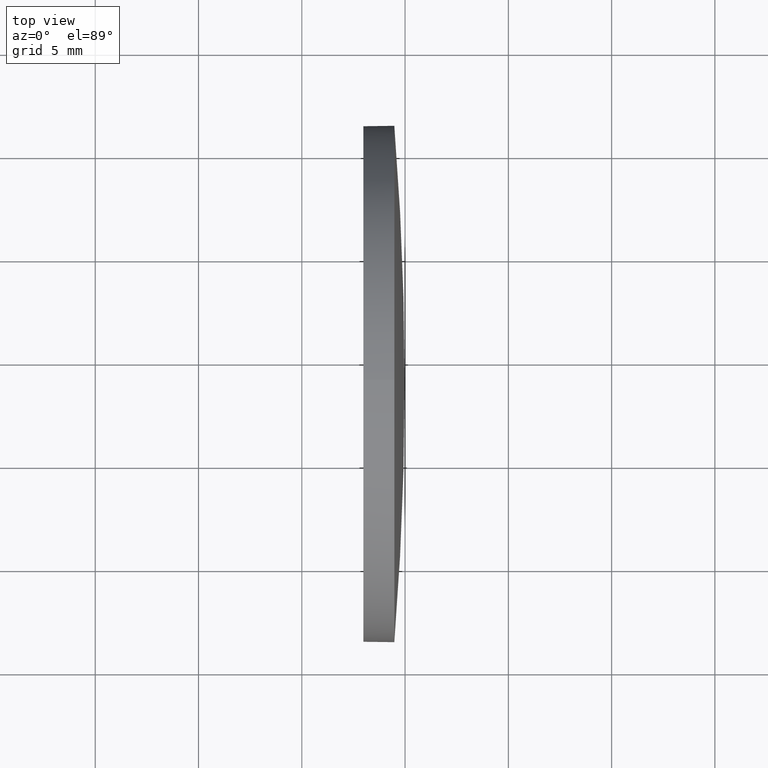
[diagram: clean part render]
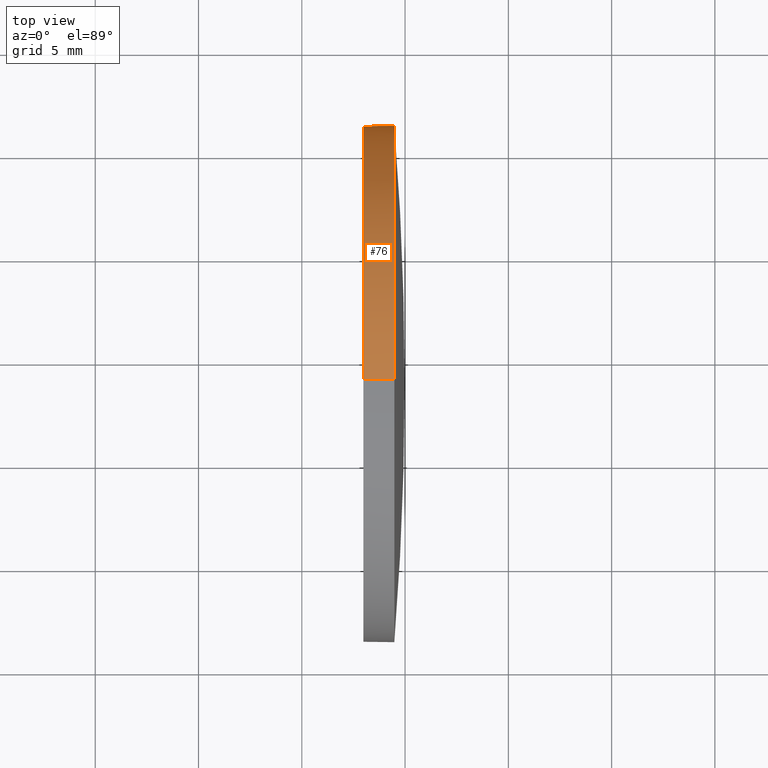
[diagram: same view with one face highlighted and labeled with its STEP entity id]
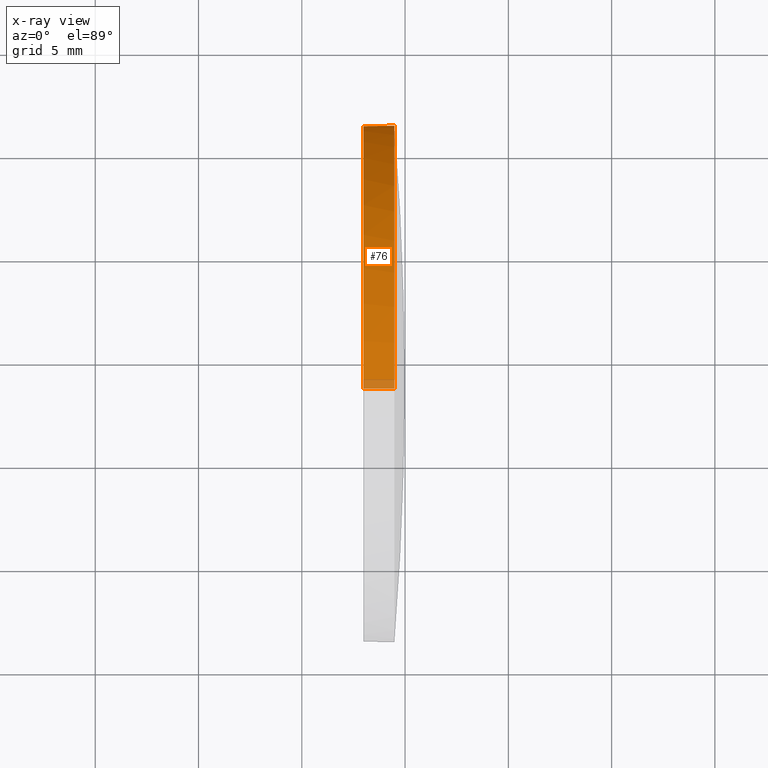
[diagram: x-ray of the same camera — body ghosted, the highlighted face saturated]
A machine part, top view. The second image highlights one B-rep face of the part: STEP entity #76.
The next image is the same camera in x-ray: the body ghosted, the highlighted face saturated — about 3% of this face is hidden behind the body in this view.
In plain terms, the highlighted cylindrical surface (partial cylindrical patch) has radius 12.5 mm, axis along (-1, -0, -0).
Its self-contained STEP definition (entity closure, byte-faithful):
#2 = ORIENTED_EDGE ( 'NONE', *, *, #123, .T. ) ;
#3 = EDGE_CURVE ( 'NONE', #79, #119, #166, .T. ) ;
#10 = CARTESIAN_POINT ( 'NONE',  ( 494.4792713746937200, 143.8584804558214500, 12.50000000000001100 ) ) ;
#13 = CARTESIAN_POINT ( 'NONE',  ( 490.6136554719327600, 143.8584804558214500, -12.50000000000001100 ) ) ;
#18 = CARTESIAN_POINT ( 'NONE',  ( 494.4792713746937200, 143.8584804558214500, -12.50000000000001100 ) ) ;
#30 = DIRECTION ( 'NONE',  ( -1.000000000000000000, -0.0000000000000000000, -0.0000000000000000000 ) ) ;
#31 = CARTESIAN_POINT ( 'NONE',  ( 494.4792713746937200, 143.8584804558214500, 0.0000000000000000000 ) ) ;
#35 = LINE ( 'NONE', #110, #150 ) ;
#38 = EDGE_LOOP ( 'NONE', ( #80, #2, #160, #162, #117 ) ) ;
#41 = FACE_OUTER_BOUND ( 'NONE', #38, .T. ) ;
#42 = DIRECTION ( 'NONE',  ( -1.000000000000000000, -0.0000000000000000000, -0.0000000000000000000 ) ) ;
#43 = DIRECTION ( 'NONE',  ( 0.0000000000000000000, 0.0000000000000000000, 1.000000000000000000 ) ) ;
#51 = VERTEX_POINT ( 'NONE', #10 ) ;
#54 = DIRECTION ( 'NONE',  ( 0.0000000000000000000, 0.0000000000000000000, 1.000000000000000000 ) ) ;
#64 = DIRECTION ( 'NONE',  ( 0.0000000000000000000, 0.0000000000000000000, 1.000000000000000000 ) ) ;
#66 = CARTESIAN_POINT ( 'NONE',  ( 494.4792713746937200, 156.3584804558213900, 0.0000000000000000000 ) ) ;
#70 = VECTOR ( 'NONE', #172, 1000.000000000000000 ) ;
#76 = ADVANCED_FACE ( 'NONE', ( #41 ), #97, .T. ) ;
#79 = VERTEX_POINT ( 'NONE', #66 ) ;
#80 = ORIENTED_EDGE ( 'NONE', *, *, #3, .T. ) ;
#84 = EDGE_CURVE ( 'NONE', #149, #176, #86, .T. ) ;
#86 = CIRCLE ( 'NONE', #164, 12.50000000000001100 ) ;
#97 = CYLINDRICAL_SURFACE ( 'NONE', #177, 12.50000000000001100 ) ;
#99 = AXIS2_PLACEMENT_3D ( 'NONE', #133, #154, #64 ) ;
#106 = CARTESIAN_POINT ( 'NONE',  ( 492.9792713746937200, 143.8584804558214500, -12.50000000000001100 ) ) ;
#110 = CARTESIAN_POINT ( 'NONE',  ( 490.6136554719327600, 143.8584804558214500, 12.50000000000001100 ) ) ;
#114 = LINE ( 'NONE', #13, #70 ) ;
#117 = ORIENTED_EDGE ( 'NONE', *, *, #146, .T. ) ;
#119 = VERTEX_POINT ( 'NONE', #18 ) ;
#121 = CARTESIAN_POINT ( 'NONE',  ( 492.9792713746937200, 143.8584804558214500, 0.0000000000000000000 ) ) ;
#123 = EDGE_CURVE ( 'NONE', #119, #176, #114, .T. ) ;
#126 = CIRCLE ( 'NONE', #129, 12.50000000000001100 ) ;
#129 = AXIS2_PLACEMENT_3D ( 'NONE', #31, #42, #43 ) ;
#133 = CARTESIAN_POINT ( 'NONE',  ( 494.4792713746937200, 143.8584804558214500, 0.0000000000000000000 ) ) ;
#138 = DIRECTION ( 'NONE',  ( 0.0000000000000000000, 0.0000000000000000000, 1.000000000000000000 ) ) ;
#140 = DIRECTION ( 'NONE',  ( -1.000000000000000000, -0.0000000000000000000, -0.0000000000000000000 ) ) ;
#141 = DIRECTION ( 'NONE',  ( -1.000000000000000000, -0.0000000000000000000, -0.0000000000000000000 ) ) ;
#143 = CARTESIAN_POINT ( 'NONE',  ( 492.9792713746937200, 143.8584804558214500, 12.50000000000001100 ) ) ;
#146 = EDGE_CURVE ( 'NONE', #51, #79, #126, .T. ) ;
#149 = VERTEX_POINT ( 'NONE', #143 ) ;
#150 = VECTOR ( 'NONE', #140, 1000.000000000000000 ) ;
#154 = DIRECTION ( 'NONE',  ( -1.000000000000000000, -0.0000000000000000000, -0.0000000000000000000 ) ) ;
#158 = CARTESIAN_POINT ( 'NONE',  ( 490.6136554719327600, 143.8584804558214500, 0.0000000000000000000 ) ) ;
#160 = ORIENTED_EDGE ( 'NONE', *, *, #84, .F. ) ;
#162 = ORIENTED_EDGE ( 'NONE', *, *, #163, .F. ) ;
#163 = EDGE_CURVE ( 'NONE', #51, #149, #35, .T. ) ;
#164 = AXIS2_PLACEMENT_3D ( 'NONE', #121, #141, #54 ) ;
#166 = CIRCLE ( 'NONE', #99, 12.50000000000001100 ) ;
#172 = DIRECTION ( 'NONE',  ( -1.000000000000000000, -0.0000000000000000000, -0.0000000000000000000 ) ) ;
#176 = VERTEX_POINT ( 'NONE', #106 ) ;
#177 = AXIS2_PLACEMENT_3D ( 'NONE', #158, #30, #138 ) ;